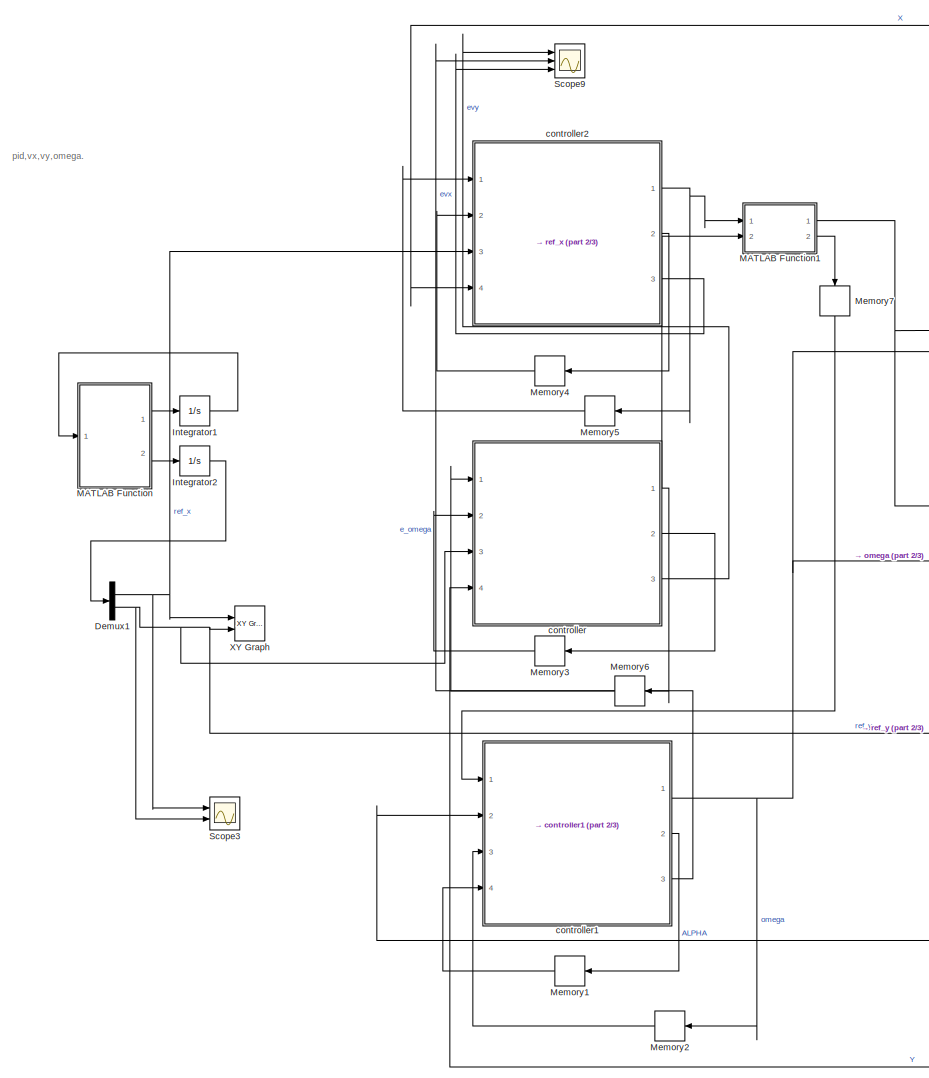
[diagram: root canvas - part 1/3, left side, full height]
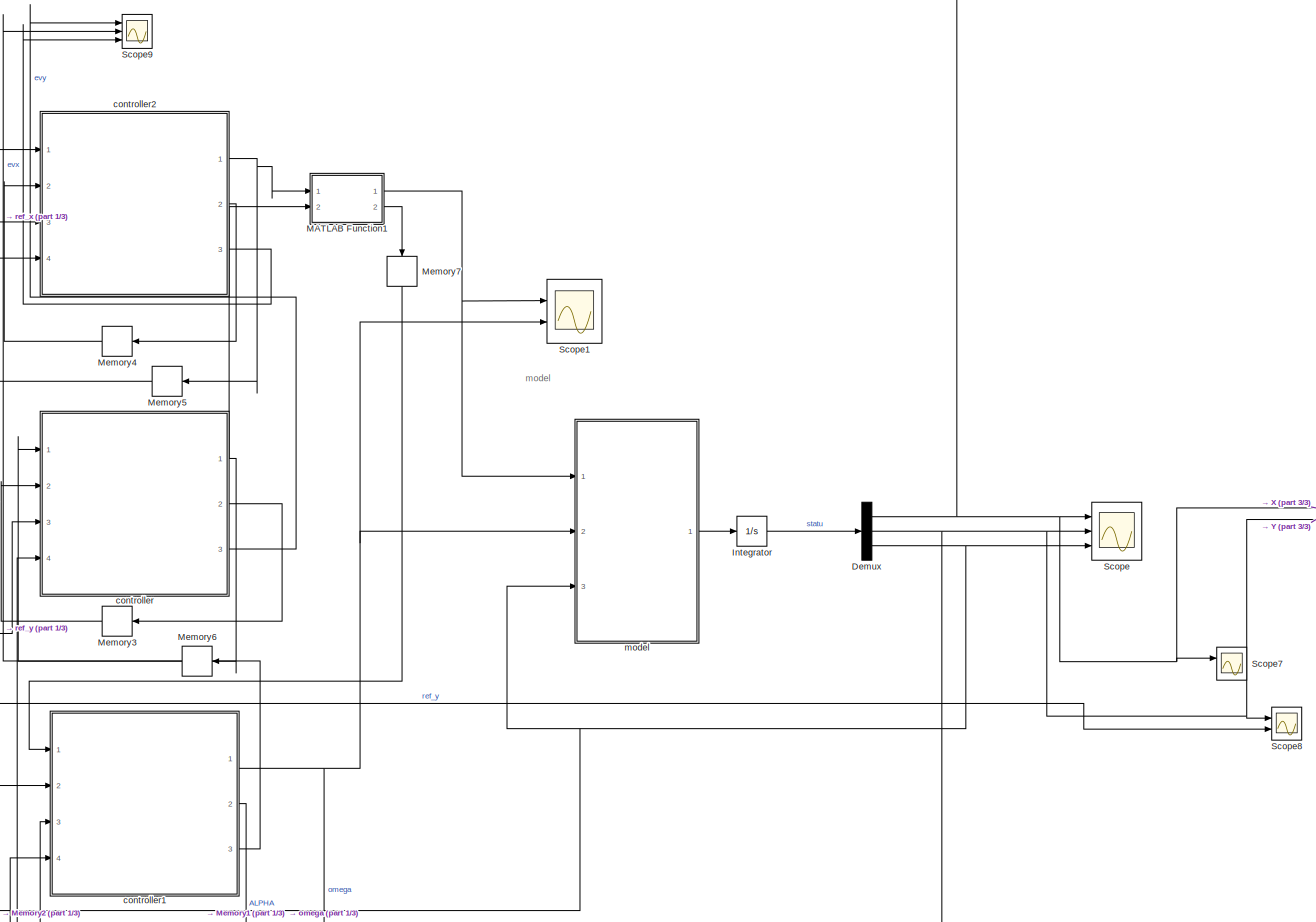
[diagram: root canvas - part 2/3, center side, full height]
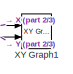
[diagram: root canvas - part 3/3, middle right region]
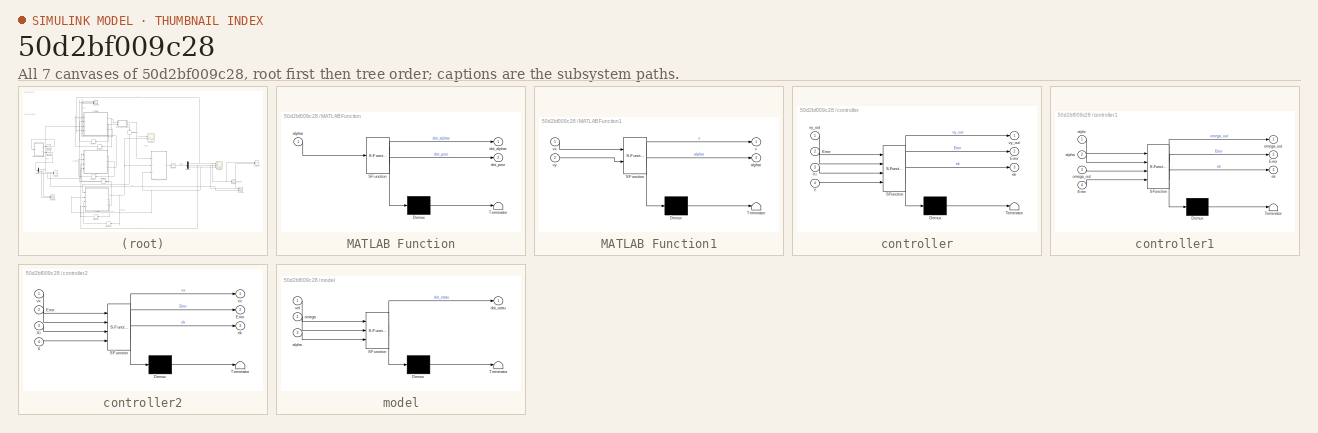
[diagram: thumbnail index - all 7 canvases of the model, root first then tree order]
MODEL slx_50d2bf009c28
KIND model
CONFIG AbsTol = auto
CONFIG EnableMultiTasking = off
CONFIG FixedStep = 0.05
CONFIG MaxStep = 0.05
CONFIG MinStep = auto
CONFIG RelTol = 1e-3
CONFIG SampleTimeConstraint = Unconstrained
CONFIG Solver = ode5
CONFIG SolverName = ode5
CONFIG StartTime = 0.0
CONFIG StopTime = 15
BLOCK [Demux] Demux
  DisplayOption = bar
  Outputs = 3
  Ports = [1, 3]
BLOCK [Demux] Demux1
  DisplayOption = bar
  Outputs = 2
  Ports = [1, 2]
BLOCK [Integrator] Integrator
  IgnoreLimit = on
  InitialCondition = [1 -1 0 ]
  Ports = [1, 1]
BLOCK [Integrator] Integrator1
  InitialCondition = pi/4
  Ports = [1, 1]
BLOCK [Integrator] Integrator2
  Ports = [1, 1]
BLOCK [SubSystem] MATLAB Function
  ErrorFcn = Stateflow.Translate.translate
  PermitHierarchicalResolution = ExplicitOnly
  Ports = [1, 2]
  RequestExecContextInheritance = off
  SFBlockType = MATLAB Function
  TreatAsAtomicUnit = on
  Variant = off
BLOCK [Demux] MATLAB Function/ Demux 
  Outputs = 1
  Ports = [1, 1]
BLOCK [S-Function] MATLAB Function/ SFunction 
  EnableBusSupport = on
  FunctionName = sf_sfun
  PortCounts = [1 3]
  Ports = [1, 3]
  SFcnIsStateOwnerBlock = off
  SFunctionDeploymentMode = off
  Tag = Stateflow S-Function Copy_2_of_PID 3
BLOCK [Terminator] MATLAB Function/ Terminator 
BLOCK [Inport] MATLAB Function/alphar
  IconDisplay = Port number
BLOCK [Outport] MATLAB Function/dot_alphar
  IconDisplay = Port number
BLOCK [Outport] MATLAB Function/dot_posr
  IconDisplay = Port number
  Port = 2
BLOCK [SubSystem] MATLAB Function1
  ErrorFcn = Stateflow.Translate.translate
  PermitHierarchicalResolution = ExplicitOnly
  Ports = [2, 2]
  RequestExecContextInheritance = off
  SFBlockType = MATLAB Function
  TreatAsAtomicUnit = on
  Variant = off
BLOCK [Demux] MATLAB Function1/ Demux 
  Outputs = 1
  Ports = [1, 1]
BLOCK [S-Function] MATLAB Function1/ SFunction 
  EnableBusSupport = on
  FunctionName = sf_sfun
  PortCounts = [2 3]
  Ports = [2, 3]
  SFcnIsStateOwnerBlock = off
  SFunctionDeploymentMode = off
  Tag = Stateflow S-Function Copy_2_of_PID 5
BLOCK [Terminator] MATLAB Function1/ Terminator 
BLOCK [Outport] MATLAB Function1/alphar
  IconDisplay = Port number
  Port = 2
BLOCK [Outport] MATLAB Function1/v
  IconDisplay = Port number
BLOCK [Inport] MATLAB Function1/vx
  IconDisplay = Port number
BLOCK [Inport] MATLAB Function1/vy
  IconDisplay = Port number
  Port = 2
BLOCK [Memory] Memory1
  X0 = [0 0 ]
BLOCK [Memory] Memory2
BLOCK [Memory] Memory3
  X0 = [0 0]
BLOCK [Memory] Memory4
  X0 = [0 0]
BLOCK [Memory] Memory5
BLOCK [Memory] Memory6
BLOCK [Memory] Memory7
BLOCK [Scope] Scope
  NumInputPorts = 3
  Ports = [3]
  ScopeSpecificationString = Simulink.scopes.TimeScopeBlockCfg('CurrentConfiguration', extmgr.ConfigurationSet(extmgr.Configuration('Core','General UI',true),extmgr.Configuration('Core','Source UI',true),extmgr.Configuration('Sources','WiredSimulink',true,'DataLoggingVariableName','ScopeData1'),extmgr.Configuration('Visuals','Time Domain',true,'SerializedDisplays',{struct('MinYLimReal','-1.30232','MaxYLimReal','11.92953','YLa...<+2836ch>
BLOCK [Scope] Scope1
  NumInputPorts = 2
  Ports = [2]
  ScopeSpecificationString = Simulink.scopes.TimeScopeBlockCfg('CurrentConfiguration', extmgr.ConfigurationSet(extmgr.Configuration('Core','General UI',true),extmgr.Configuration('Core','Source UI',true),extmgr.Configuration('Sources','WiredSimulink',true,'DataLoggingVariableName','ScopeData1'),extmgr.Configuration('Visuals','Time Domain',true,'SerializedDisplays',{struct('MinYLimReal','-9.56521','MaxYLimReal','10.15596','YLa...<+2126ch>
BLOCK [Scope] Scope3
  NumInputPorts = 2
  Ports = [2]
  ScopeSpecificationString = Simulink.scopes.TimeScopeBlockCfg('CurrentConfiguration', extmgr.ConfigurationSet(extmgr.Configuration('Core','General UI',true),extmgr.Configuration('Core','Source UI',true),extmgr.Configuration('Sources','WiredSimulink',true,'DataLoggingVariableName','ScopeData1'),extmgr.Configuration('Visuals','Time Domain',true,'SerializedDisplays',{struct('MinYLimReal','-2.65165','MaxYLimReal','23.86485','YLa...<+1992ch>
BLOCK [Scope] Scope7
  NumInputPorts = 2
  Ports = [2]
  ScopeSpecificationString = Simulink.scopes.TimeScopeBlockCfg('CurrentConfiguration', extmgr.ConfigurationSet(extmgr.Configuration('Core','General UI',true),extmgr.Configuration('Core','Source UI',true),extmgr.Configuration('Sources','WiredSimulink',true,'DataLoggingVariableName','ScopeData4'),extmgr.Configuration('Visuals','Time Domain',true,'SerializedDisplays',{struct('MinYLimReal','-5.34369','MaxYLimReal','48.09324','YLa...<+1438ch>
BLOCK [Scope] Scope8
  NumInputPorts = 2
  Ports = [2]
  ScopeSpecificationString = Simulink.scopes.TimeScopeBlockCfg('CurrentConfiguration', extmgr.ConfigurationSet(extmgr.Configuration('Core','General UI',true),extmgr.Configuration('Core','Source UI',true),extmgr.Configuration('Sources','WiredSimulink',true,'DataLoggingVariableName','ScopeData5'),extmgr.Configuration('Visuals','Time Domain',true,'SerializedDisplays',{struct('MinYLimReal','-4.37561','MaxYLimReal','29.35369','YLa...<+1453ch>
BLOCK [Scope] Scope9
  NumInputPorts = 3
  Ports = [3]
  ScopeSpecificationString = Simulink.scopes.TimeScopeBlockCfg('CurrentConfiguration', extmgr.ConfigurationSet(extmgr.Configuration('Core','General UI',true),extmgr.Configuration('Core','Source UI',true),extmgr.Configuration('Sources','WiredSimulink',true,'DataLoggingVariableName','ScopeData1'),extmgr.Configuration('Visuals','Time Domain',true,'SerializedDisplays',{struct('MinYLimReal','-0.5428','MaxYLimReal','2.03996','YLabe...<+2882ch>
BLOCK [Reference] XY Graph  REF=simulink/Sinks/XY Graph
  Ports = [2]
  SourceBlock = simulink/Sinks/XY Graph
  SourceProductBaseCode = SL
  SourceProductName = Simulink
  SourceType = XY scope.
BLOCK [Reference] XY Graph1  REF=simulink/Sinks/XY Graph
  Ports = [2]
  SourceBlock = simulink/Sinks/XY Graph
  SourceProductBaseCode = SL
  SourceProductName = Simulink
  SourceType = XY scope.
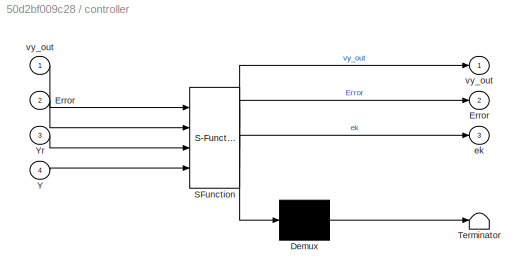
BLOCK [SubSystem] controller
  ErrorFcn = Stateflow.Translate.translate
  PermitHierarchicalResolution = ExplicitOnly
  Ports = [4, 3]
  RequestExecContextInheritance = off
  SFBlockType = MATLAB Function
  TreatAsAtomicUnit = on
  Variant = off
BLOCK [Demux] controller/ Demux 
  Outputs = 1
  Ports = [1, 1]
BLOCK [S-Function] controller/ SFunction 
  EnableBusSupport = on
  FunctionName = sf_sfun
  PortCounts = [4 4]
  Ports = [4, 4]
  SFcnIsStateOwnerBlock = off
  SFunctionDeploymentMode = off
  Tag = Stateflow S-Function Copy_2_of_PID 1
BLOCK [Terminator] controller/ Terminator 
BLOCK [Outport] controller/Error
  IconDisplay = Port number
  Port = 2
BLOCK [Inport] controller/Error 
  IconDisplay = Port number
  Port = 2
BLOCK [Inport] controller/Y
  IconDisplay = Port number
  Port = 4
BLOCK [Inport] controller/Yr
  IconDisplay = Port number
  Port = 3
BLOCK [Outport] controller/ek
  IconDisplay = Port number
  Port = 3
BLOCK [Outport] controller/vy_out
  IconDisplay = Port number
BLOCK [Inport] controller/vy_out 
  IconDisplay = Port number
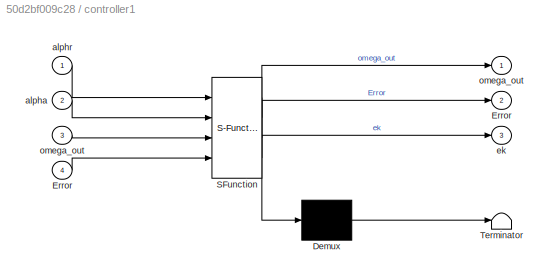
BLOCK [SubSystem] controller1
  ErrorFcn = Stateflow.Translate.translate
  PermitHierarchicalResolution = ExplicitOnly
  Ports = [4, 3]
  RequestExecContextInheritance = off
  SFBlockType = MATLAB Function
  TreatAsAtomicUnit = on
  Variant = off
BLOCK [Demux] controller1/ Demux 
  Outputs = 1
  Ports = [1, 1]
BLOCK [S-Function] controller1/ SFunction 
  EnableBusSupport = on
  FunctionName = sf_sfun
  PortCounts = [4 4]
  Ports = [4, 4]
  SFcnIsStateOwnerBlock = off
  SFunctionDeploymentMode = off
  Tag = Stateflow S-Function Copy_2_of_PID 4
BLOCK [Terminator] controller1/ Terminator 
BLOCK [Outport] controller1/Error
  IconDisplay = Port number
  Port = 2
BLOCK [Inport] controller1/Error 
  IconDisplay = Port number
  Port = 4
BLOCK [Inport] controller1/alpha
  IconDisplay = Port number
  Port = 2
BLOCK [Inport] controller1/alphr
  IconDisplay = Port number
BLOCK [Outport] controller1/ek
  IconDisplay = Port number
  Port = 3
BLOCK [Outport] controller1/omega_out
  IconDisplay = Port number
BLOCK [Inport] controller1/omega_out 
  IconDisplay = Port number
  Port = 3
BLOCK [SubSystem] controller2
  ErrorFcn = Stateflow.Translate.translate
  PermitHierarchicalResolution = ExplicitOnly
  Ports = [4, 3]
  RequestExecContextInheritance = off
  SFBlockType = MATLAB Function
  TreatAsAtomicUnit = on
  Variant = off
BLOCK [Demux] controller2/ Demux 
  Outputs = 1
  Ports = [1, 1]
BLOCK [S-Function] controller2/ SFunction 
  EnableBusSupport = on
  FunctionName = sf_sfun
  PortCounts = [4 4]
  Ports = [4, 4]
  SFcnIsStateOwnerBlock = off
  SFunctionDeploymentMode = off
  Tag = Stateflow S-Function Copy_2_of_PID 6
BLOCK [Terminator] controller2/ Terminator 
BLOCK [Outport] controller2/Error
  IconDisplay = Port number
  Port = 2
BLOCK [Inport] controller2/Error 
  IconDisplay = Port number
  Port = 2
BLOCK [Inport] controller2/X
  IconDisplay = Port number
  Port = 4
BLOCK [Inport] controller2/Xr
  IconDisplay = Port number
  Port = 3
BLOCK [Outport] controller2/ek
  IconDisplay = Port number
  Port = 3
BLOCK [Outport] controller2/vx
  IconDisplay = Port number
BLOCK [Inport] controller2/vx 
  IconDisplay = Port number
BLOCK [SubSystem] model
  ErrorFcn = Stateflow.Translate.translate
  PermitHierarchicalResolution = ExplicitOnly
  Ports = [3, 1]
  RequestExecContextInheritance = off
  SFBlockType = MATLAB Function
  TreatAsAtomicUnit = on
  Variant = off
BLOCK [Demux] model/ Demux 
  Outputs = 1
  Ports = [1, 1]
BLOCK [S-Function] model/ SFunction 
  EnableBusSupport = on
  FunctionName = sf_sfun
  PortCounts = [3 2]
  Ports = [3, 2]
  SFcnIsStateOwnerBlock = off
  SFunctionDeploymentMode = off
  Tag = Stateflow S-Function Copy_2_of_PID 2
BLOCK [Terminator] model/ Terminator 
BLOCK [Inport] model/alpha
  IconDisplay = Port number
  Port = 3
BLOCK [Outport] model/dot_statu
  IconDisplay = Port number
BLOCK [Inport] model/omega
  IconDisplay = Port number
  Port = 2
BLOCK [Inport] model/vel
  IconDisplay = Port number
ANNOTATION (root): model
ANNOTATION (root): pid,vx,vy,omega.
NET Demux1:1 -> Scope3:1, XY Graph:1, controller2:3
NET Demux1:2 -> Scope3:2, Scope8:2, XY Graph:2, controller:3
NET Demux:1 -> Scope7:1, Scope:1, XY Graph1:1, controller2:4
NET Demux:2 -> Scope8:1, Scope:2, XY Graph1:2, controller:4
NET Demux:3 -> Scope:3, controller1:2, model:3
LINE Integrator1:1 -> MATLAB Function:1
LINE Integrator2:1 -> Demux1:1
LINE Integrator:1 -> Demux:1
NET MATLAB Function1:1 -> Scope1:1, model:1
LINE MATLAB Function1:2 -> Memory7:1
LINE MATLAB Function:1 -> Integrator1:1
LINE MATLAB Function:2 -> Integrator2:1
LINE Memory1:1 -> controller1:4
LINE Memory2:1 -> controller1:3
LINE Memory3:1 -> controller:2
LINE Memory4:1 -> controller2:2
LINE Memory5:1 -> controller2:1
LINE Memory6:1 -> controller:1
LINE Memory7:1 -> controller1:1
NET controller1:1 -> Memory2:1, Scope1:2, model:2
LINE controller1:2 -> Memory1:1
LINE controller1:3 -> Scope9:2
NET controller2:1 -> MATLAB Function1:1, Memory5:1
LINE controller2:2 -> Memory4:1
LINE controller2:3 -> Scope9:3
NET controller:1 -> MATLAB Function1:2, Memory6:1
LINE controller:2 -> Memory3:1
LINE controller:3 -> Scope9:1
LINE model:1 -> Integrator:1
note: NET lines group one-source signal fan-out (src -> all destinations, sorted); 1:1 wires keep LINE
CHART controller states=1 transitions=1
  STATE_LABEL 'eML_blk_kernel()'
  STATE_LABEL 'SCRIPT:\nfunction [vy_out,Error,ek] = my_vy_controller( vy_out,Error,Yr,Y)\n% 程序上没有问题，在运动学模型上是可以完成任务的\n% 最近修改时间：11. 20\n% 基于运动学模型的   控制器\n% u_out=[vx ;  omega]\n% ref_vel=[xr yr alphar vr omegar]\n% % e = [ex ey ealpha]\n% \n% \n\n%% 状态量                                                                           \nek=Yr-Y;\n\nek_1=Error(1);\nek_2=Error(2);\n\nkp=5;  ki=0.1;  kd=0;\ndelta_u=kp*(ek-ek_1)+ki*ek+kd*(ek-2...<+1323ch>'
CHART model states=1 transitions=1
  STATE_LABEL 'eML_blk_kernel()'
  STATE_LABEL 'SCRIPT:\nfunction dot_statu  = model(vel,omega,alpha)\n\n\n\ndot_alpha = omega;\ndot_X=vel*cos(alpha);\ndot_Y=vel*sin(alpha);\n\n\n\n% 状态【x y alpha vx vy omega】\ndot_statu = [dot_X,dot_Y,dot_alpha];\n\nend\n\n% max=1/wheel_radius;\n% for i=1:size(wheel_omega,2)\n%     if wheel_omega(i)>max\n%         wheel_omega(i) = max;\n%     else\n%         if wheel_omega(i)<-max\n%             wheel_omega(i) = -max;\n%         else...<+78ch>'
CHART MATLAB Function states=1 transitions=1
  STATE_LABEL 'eML_blk_kernel()'
  STATE_LABEL 'SCRIPT:\nfunction [dot_alphar,dot_posr] = ref(alphar)\n\n\nomegar=0;\n\nvelr=1;\ndot_alphar = omegar;\ndot_xr=velr*cos(alphar);\ndot_yr=velr*sin(alphar);\n\ndot_posr=[dot_xr;dot_yr];\n\nend'
CHART controller1 states=1 transitions=1
  STATE_LABEL 'eML_blk_kernel()'
  STATE_LABEL 'SCRIPT:\nfunction [omega_out,Error,ek] = my_omega_controller(alphr,alpha, omega_out,Error)\n% 程序上没有问题，在运动学模型上是可以完成任务的\n% 最近修改时间：11. 20\n% 基于运动学模型的   控制器\n% u_out=[vx ;  omega]\n% ref_vel=[xr yr alphar vr omegar]\n% % e = [ex ey ealpha]\n% \n%\n%% 状态量                                                                           \nek=alphr-alpha;\nek_1=Error(1)\nek_2=Error(2)\n\n\n% kp=0.5;  ki=0.005;  kd=0.02;\n% kp=0....<+1501ch>'
CHART MATLAB Function1 states=1 transitions=1
  STATE_LABEL 'eML_blk_kernel()'
  STATE_LABEL 'SCRIPT:\nfunction [v,alphar ]= fcn(vx,vy)\n\nalphar=atan(vy/vx);\n\nv = vy/sin(alphar);\n\n'
CHART controller2 states=1 transitions=1
  STATE_LABEL 'eML_blk_kernel()'
  STATE_LABEL 'SCRIPT:\nfunction [vx,Error,ek] = my_vx_controller( vx,Error,Xr,X)\n% 程序上没有问题，在运动学模型上是可以完成任务的\n% 最近修改时间：11. 20\n% 基于运动学模型的   控制器\n% u_out=[vx ;  omega]\n% ref_vel=[xr yr alphar vr omegar]\n% % e = [ex ey ealpha]\n% \n% \n\n%% 状态量                                                                           \nek=Xr-X;\nek_1=Error(1);\nek_2=Error(2);\n\nkp=5;  ki=0.1;  kd=0;\ndelta_u=kp*(ek-ek_1)+ki*ek+kd*(ek-2*ek_1+ek_...<+1306ch>'
